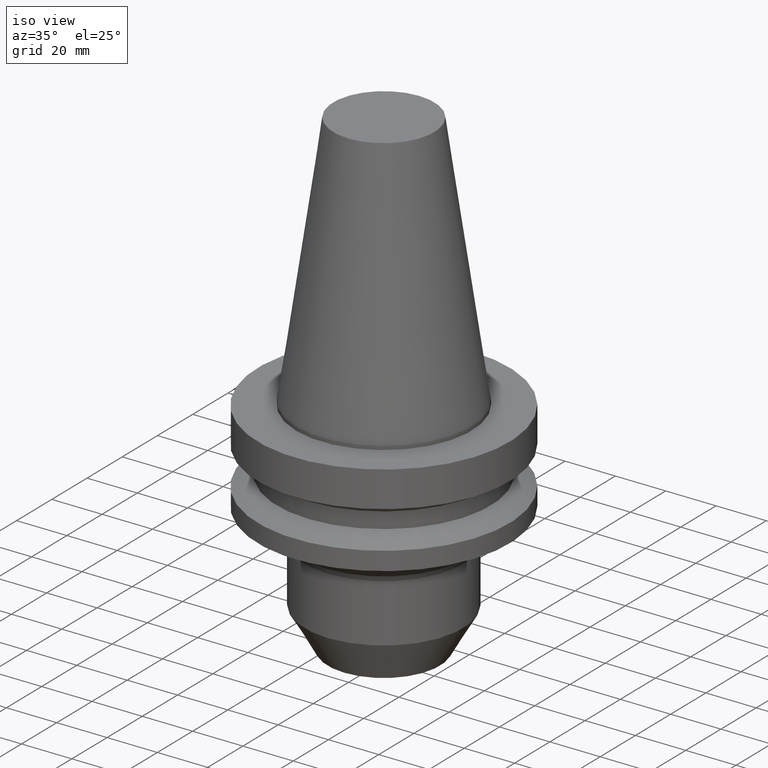
[diagram: clean part render]
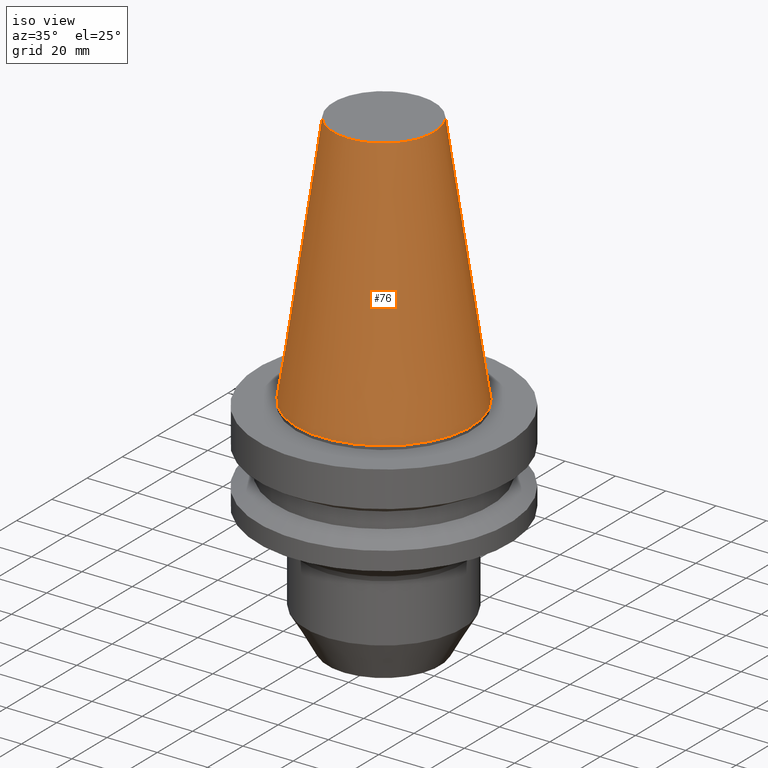
[diagram: tour spotlight — one face highlighted and labeled with its STEP entity id]
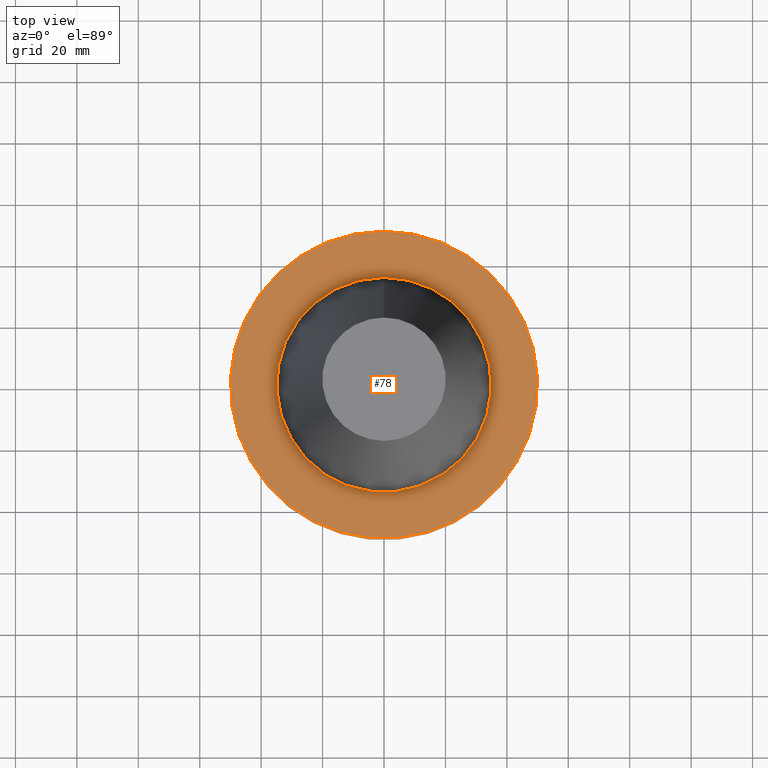
[diagram: tour spotlight — one face highlighted and labeled with its STEP entity id]
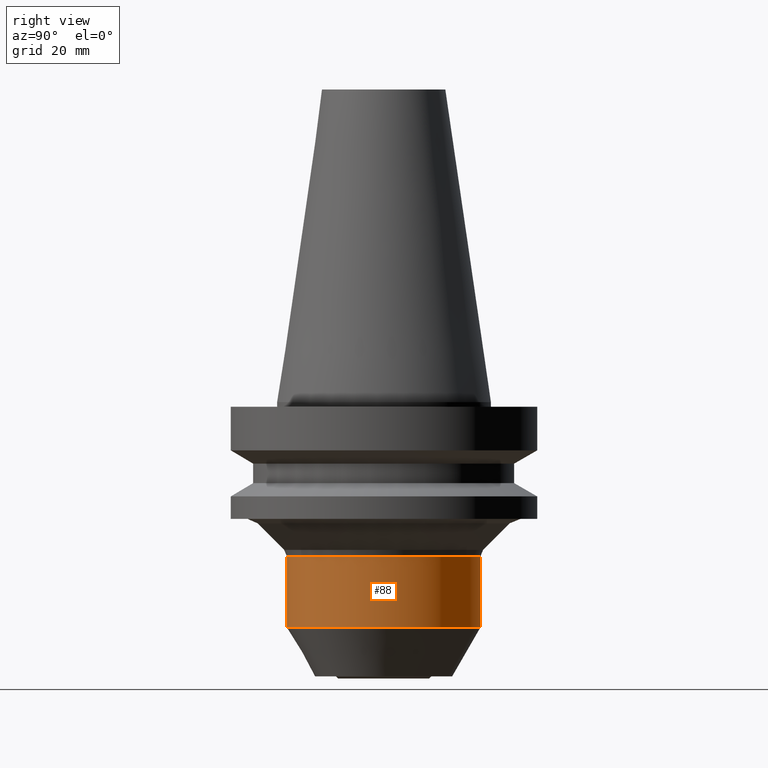
[diagram: tour spotlight — one face highlighted and labeled with its STEP entity id]
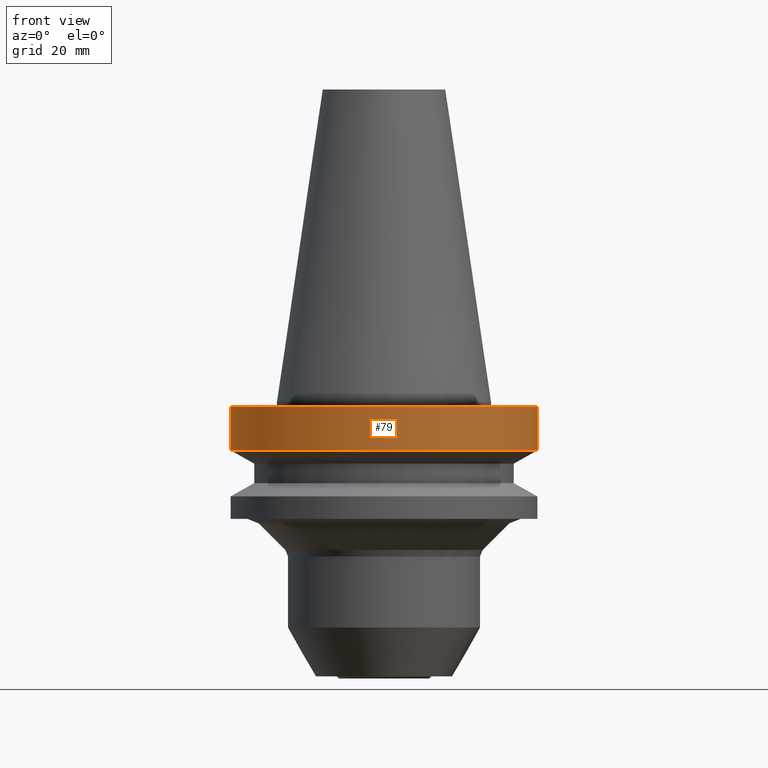
[diagram: tour spotlight — one face highlighted and labeled with its STEP entity id]
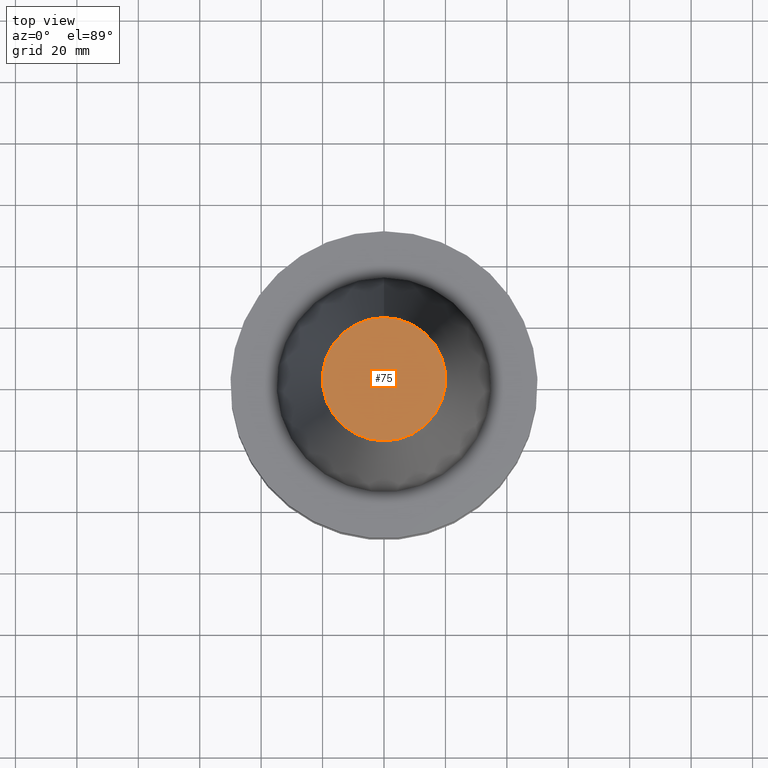
[diagram: tour spotlight — one face highlighted and labeled with its STEP entity id]
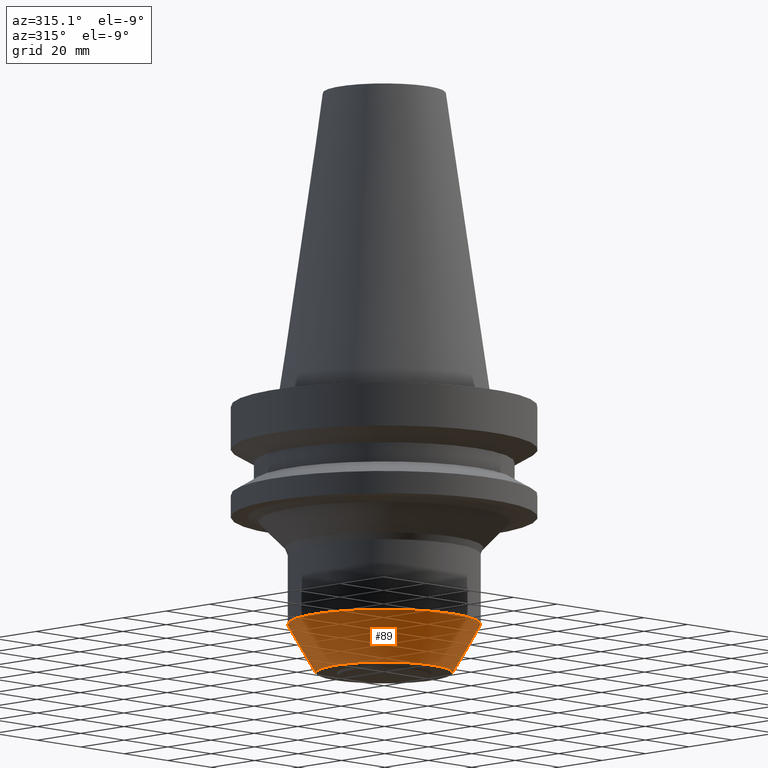
[diagram: tour spotlight — one face highlighted and labeled with its STEP entity id]
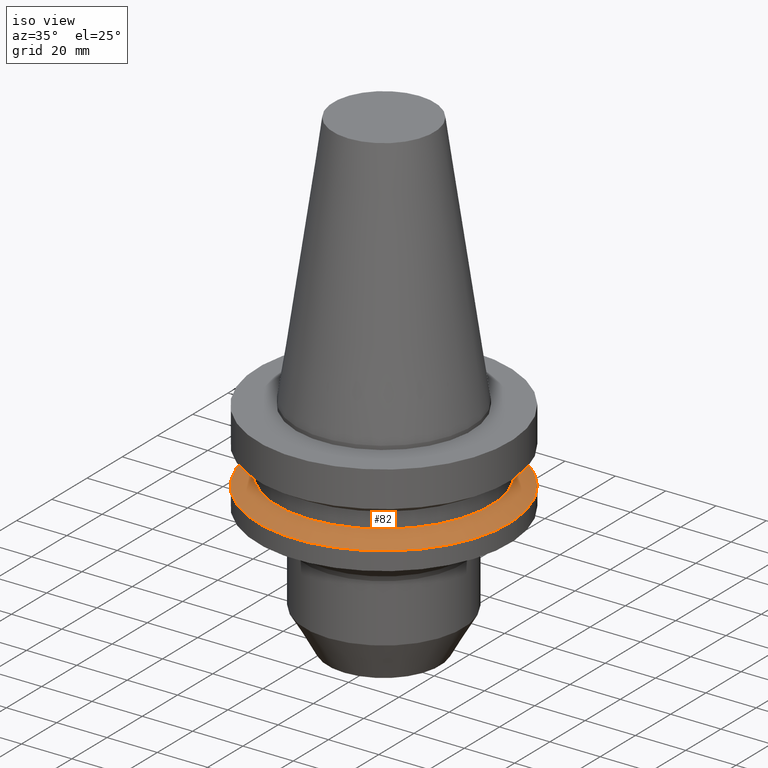
[diagram: tour spotlight — one face highlighted and labeled with its STEP entity id]
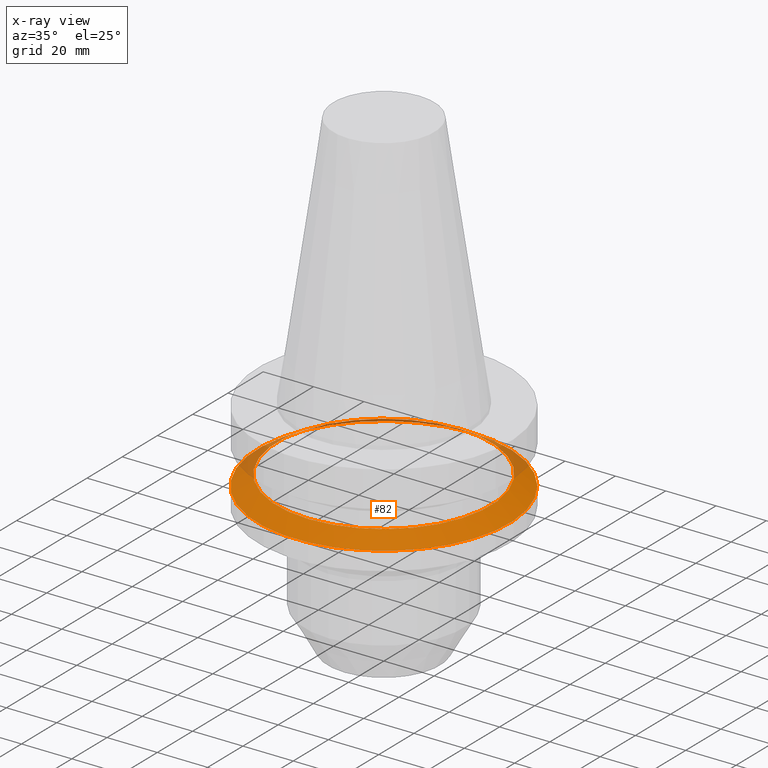
[diagram: x-ray of the same camera — body ghosted, this tour face saturated]
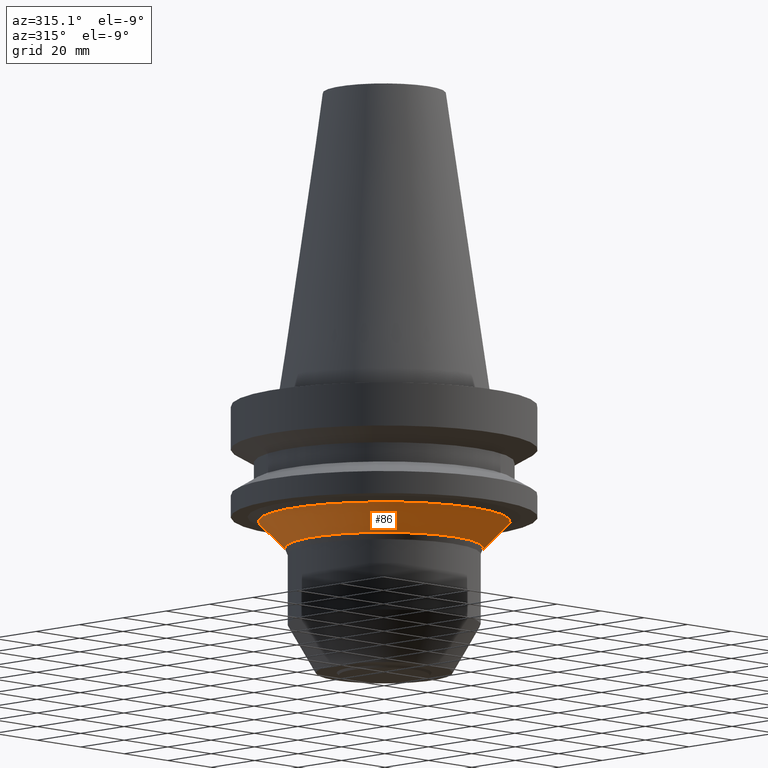
[diagram: tour spotlight — one face highlighted and labeled with its STEP entity id]
A machine part: a face-by-face anatomy tour. The part has 18 B-rep faces; the first image is the clean iso view, then the 8 largest visible faces are spotlighted one at a time (largest first), each with its STEP entity span.

Face 1 — iso view, entity #76. In plain terms, the highlighted conical surface has half-angle 8.297 deg.
Definition (entity closure, byte-faithful):
#76=ADVANCED_FACE('',(#96,#97),#98,.T.);
#96=FACE_BOUND('',#148,.T.);
#97=FACE_BOUND('',#149,.T.);
#98=CONICAL_SURFACE('',#150,27.5020833333334,0.144812498238939);
#148=EDGE_LOOP('',(#202));
#149=EDGE_LOOP('',(#203));
#150=AXIS2_PLACEMENT_3D('',#204,#205,#206);
#202=ORIENTED_EDGE('',*,*,#287,.F.);
#203=ORIENTED_EDGE('',*,*,#286,.T.);
#204=CARTESIAN_POINT('',(-3.11672610383001E-015,2.5138379520964E-015,50.9));
#205=DIRECTION('',(6.12323399573677E-017,6.1434083365827E-017,-1.0));
#206=DIRECTION('',(-8.58890540839761E-033,1.0,6.1434083365827E-017));
#286=EDGE_CURVE('',#303,#303,#304,.T.);
#287=EDGE_CURVE('',#305,#305,#306,.T.);
#303=VERTEX_POINT('',#337);
#304=CIRCLE('',#338,20.0791666666667);
#305=VERTEX_POINT('',#339);
#306=CIRCLE('',#340,34.925);
#337=CARTESIAN_POINT('',(-6.23345220766003E-015,20.0791666666667,101.8));
#338=AXIS2_PLACEMENT_3D('',#371,#372,#373);
#339=CARTESIAN_POINT('',(-4.30483861169436E-031,34.925,4.27707894602214E-015));
#340=AXIS2_PLACEMENT_3D('',#374,#375,#376);
#371=CARTESIAN_POINT('',(-6.23345220766003E-015,-6.13156891226943E-016,101.8));
#372=DIRECTION('',(6.12323399573677E-017,6.14340833658759E-017,-1.0));
#373=DIRECTION('',(-8.58890540839531E-033,1.0,6.14340833658759E-017));
#374=CARTESIAN_POINT('',(-6.95286322686748E-047,5.64083279541974E-015,6.9080278274362E-031));
#375=DIRECTION('',(6.12323399573677E-017,6.14340833658914E-017,-1.0));
#376=DIRECTION('',(-8.58890540840407E-033,1.0,6.14340833658914E-017));

Face 2 — top view, entity #78. In plain terms, the highlighted planar face has unit normal (-0, 0, 1).
Definition (entity closure, byte-faithful):
#78=ADVANCED_FACE('',(#102,#103),#104,.T.);
#102=FACE_OUTER_BOUND('',#154,.T.);
#103=FACE_BOUND('',#155,.T.);
#104=PLANE('',#156);
#154=EDGE_LOOP('',(#212));
#155=EDGE_LOOP('',(#213));
#156=AXIS2_PLACEMENT_3D('',#214,#215,#216);
#212=ORIENTED_EDGE('',*,*,#289,.F.);
#213=ORIENTED_EDGE('',*,*,#288,.T.);
#214=CARTESIAN_POINT('',(9.18485099360522E-017,42.4625,-1.50000000000002));
#215=DIRECTION('',(-6.12323399573677E-017,1.04115215518161E-015,1.0));
#216=DIRECTION('',(-5.89250299826576E-032,-1.0,1.04115215518161E-015));
#288=EDGE_CURVE('',#307,#307,#308,.T.);
#289=EDGE_CURVE('',#309,#309,#310,.T.);
#307=VERTEX_POINT('',#341);
#308=CIRCLE('',#342,34.925);
#309=VERTEX_POINT('',#343);
#310=CIRCLE('',#344,50.0);
#341=CARTESIAN_POINT('',(9.18485099360518E-017,34.925,-1.50000000000001));
#342=AXIS2_PLACEMENT_3D('',#377,#378,#379);
#343=CARTESIAN_POINT('',(9.18485099360527E-017,50.0,-1.50000000000002));
#344=AXIS2_PLACEMENT_3D('',#380,#381,#382);
#377=CARTESIAN_POINT('',(9.18485099360524E-017,5.73298392046856E-015,-1.50000000000001));
#378=DIRECTION('',(6.12323399573677E-017,6.14340833658914E-017,-1.0));
#379=DIRECTION('',(-8.58890540840407E-033,1.0,6.14340833658914E-017));
#380=CARTESIAN_POINT('',(9.18485099360532E-017,5.73298392046856E-015,-1.50000000000003));
#381=DIRECTION('',(6.12323399573677E-017,6.14340833658324E-017,-1.0));
#382=DIRECTION('',(-8.58890540840134E-033,1.0,6.14340833658324E-017));

Face 3 — right view, entity #88. In plain terms, the highlighted cylindrical surface (bore or boss wall) has radius 31.5 mm, axis along (-0, -0, 1).
Definition (entity closure, byte-faithful):
#88=ADVANCED_FACE('',(#132,#133),#134,.T.);
#132=FACE_BOUND('',#184,.T.);
#133=FACE_BOUND('',#185,.T.);
#134=CYLINDRICAL_SURFACE('',#186,31.5000000000001);
#184=EDGE_LOOP('',(#262));
#185=EDGE_LOOP('',(#263));
#186=AXIS2_PLACEMENT_3D('',#264,#265,#266);
#262=ORIENTED_EDGE('',*,*,#299,.F.);
#263=ORIENTED_EDGE('',*,*,#298,.T.);
#264=CARTESIAN_POINT('',(3.78439659673765E-015,9.43769791890524E-015,-61.8038866287405));
#265=DIRECTION('',(-6.12323399573677E-017,-6.14340833658364E-017,1.0));
#266=DIRECTION('',(-8.58890540839311E-033,1.0,6.14340833658364E-017));
#298=EDGE_CURVE('',#327,#327,#328,.T.);
#299=EDGE_CURVE('',#329,#329,#330,.T.);
#327=VERTEX_POINT('',#361);
#328=CIRCLE('',#362,31.4999999999995);
#329=VERTEX_POINT('',#363);
#330=CIRCLE('',#364,31.5000000000007);
#361=CARTESIAN_POINT('',(3.07647445490945E-015,31.4999999999995,-50.2426406871175));
#362=AXIS2_PLACEMENT_3D('',#407,#408,#409);
#363=CARTESIAN_POINT('',(4.49231873856584E-015,31.5000000000007,-73.3651325703635));
#364=AXIS2_PLACEMENT_3D('',#410,#411,#412);
#407=CARTESIAN_POINT('',(3.07647445490945E-015,8.72744337191412E-015,-50.2426406871175));
#408=DIRECTION('',(6.12323399573677E-017,6.14340833658375E-017,-1.0));
#409=DIRECTION('',(-8.58890540839328E-033,1.0,6.14340833658375E-017));
#410=CARTESIAN_POINT('',(4.49231873856584E-015,1.01479524658964E-014,-73.3651325703635));
#411=DIRECTION('',(6.12323399573677E-017,6.14340833658352E-017,-1.0));
#412=DIRECTION('',(-8.58890540839295E-033,1.0,6.14340833658352E-017));

Face 4 — front view, entity #79. In plain terms, the highlighted cylindrical surface (bore or boss wall) has radius 50 mm, axis along (-0, -0, 1).
Definition (entity closure, byte-faithful):
#79=ADVANCED_FACE('',(#105,#106),#107,.T.);
#105=FACE_BOUND('',#157,.T.);
#106=FACE_BOUND('',#158,.T.);
#107=CYLINDRICAL_SURFACE('',#159,50.0);
#157=EDGE_LOOP('',(#217));
#158=EDGE_LOOP('',(#218));
#159=AXIS2_PLACEMENT_3D('',#219,#220,#221);
#217=ORIENTED_EDGE('',*,*,#290,.F.);
#218=ORIENTED_EDGE('',*,*,#289,.T.);
#219=CARTESIAN_POINT('',(5.26598123633362E-016,6.16916591236632E-015,-8.59999999999999));
#220=DIRECTION('',(-6.12323399573677E-017,-6.14340833658324E-017,1.0));
#221=DIRECTION('',(-8.58890540840134E-033,1.0,6.14340833658324E-017));
#289=EDGE_CURVE('',#309,#309,#310,.T.);
#290=EDGE_CURVE('',#311,#311,#312,.T.);
#309=VERTEX_POINT('',#343);
#310=CIRCLE('',#344,50.0);
#311=VERTEX_POINT('',#345);
#312=CIRCLE('',#346,50.0);
#343=CARTESIAN_POINT('',(9.18485099360527E-017,50.0,-1.50000000000002));
#344=AXIS2_PLACEMENT_3D('',#380,#381,#382);
#345=CARTESIAN_POINT('',(9.61347737330669E-016,50.0,-15.7));
#346=AXIS2_PLACEMENT_3D('',#383,#384,#385);
#380=CARTESIAN_POINT('',(9.18485099360532E-017,5.73298392046856E-015,-1.50000000000003));
#381=DIRECTION('',(6.12323399573677E-017,6.14340833658324E-017,-1.0));
#382=DIRECTION('',(-8.58890540840134E-033,1.0,6.14340833658324E-017));
#383=CARTESIAN_POINT('',(9.6134773733067E-016,6.60534790426407E-015,-15.7));
#384=DIRECTION('',(6.12323399573677E-017,6.14340833658324E-017,-1.0));
#385=DIRECTION('',(-8.58890540840134E-033,1.0,6.14340833658324E-017));

Face 5 — top view, entity #75. In plain terms, the highlighted planar face has unit normal (-0, -0, 1).
Definition (entity closure, byte-faithful):
#75=ADVANCED_FACE('',(#94),#95,.T.);
#94=FACE_OUTER_BOUND('',#146,.T.);
#95=PLANE('',#147);
#146=EDGE_LOOP('',(#198));
#147=AXIS2_PLACEMENT_3D('',#199,#200,#201);
#198=ORIENTED_EDGE('',*,*,#286,.F.);
#199=CARTESIAN_POINT('',(-6.23345220766003E-015,10.0395833333334,101.8));
#200=DIRECTION('',(-6.12323399573677E-017,-1.22464679914735E-016,1.0));
#201=DIRECTION('',(1.23259516440783E-032,-1.0,-1.22464679914735E-016));
#286=EDGE_CURVE('',#303,#303,#304,.T.);
#303=VERTEX_POINT('',#337);
#304=CIRCLE('',#338,20.0791666666667);
#337=CARTESIAN_POINT('',(-6.23345220766003E-015,20.0791666666667,101.8));
#338=AXIS2_PLACEMENT_3D('',#371,#372,#373);
#371=CARTESIAN_POINT('',(-6.23345220766003E-015,-6.13156891226943E-016,101.8));
#372=DIRECTION('',(6.12323399573677E-017,6.14340833658759E-017,-1.0));
#373=DIRECTION('',(-8.58890540839531E-033,1.0,6.14340833658759E-017));

Face 6 — auxiliary view, entity #89. In plain terms, the highlighted conical surface has half-angle 30 deg.
Definition (entity closure, byte-faithful):
#89=ADVANCED_FACE('',(#135,#136),#137,.T.);
#135=FACE_BOUND('',#187,.T.);
#136=FACE_BOUND('',#188,.T.);
#137=CONICAL_SURFACE('',#189,26.9000000000004,0.523598775598279);
#187=EDGE_LOOP('',(#267));
#188=EDGE_LOOP('',(#268));
#189=AXIS2_PLACEMENT_3D('',#269,#270,#271);
#267=ORIENTED_EDGE('',*,*,#300,.F.);
#268=ORIENTED_EDGE('',*,*,#299,.T.);
#269=CARTESIAN_POINT('',(4.98018334837936E-015,1.06374244529446E-014,-81.3325662851813));
#270=DIRECTION('',(-6.12323399573676E-017,-6.14340833659161E-017,1.0));
#271=DIRECTION('',(-8.58890540839892E-033,1.0,6.14340833659161E-017));
#299=EDGE_CURVE('',#329,#329,#330,.T.);
#300=EDGE_CURVE('',#331,#331,#332,.T.);
#329=VERTEX_POINT('',#363);
#330=CIRCLE('',#364,31.5000000000007);
#331=VERTEX_POINT('',#365);
#332=CIRCLE('',#366,22.3000000000001);
#363=CARTESIAN_POINT('',(4.49231873856584E-015,31.5000000000007,-73.3651325703635));
#364=AXIS2_PLACEMENT_3D('',#410,#411,#412);
#365=CARTESIAN_POINT('',(5.46804795819287E-015,22.3000000000001,-89.299999999999));
#366=AXIS2_PLACEMENT_3D('',#413,#414,#415);
#410=CARTESIAN_POINT('',(4.49231873856584E-015,1.01479524658964E-014,-73.3651325703635));
#411=DIRECTION('',(6.12323399573677E-017,6.14340833658352E-017,-1.0));
#412=DIRECTION('',(-8.58890540839295E-033,1.0,6.14340833658352E-017));
#413=CARTESIAN_POINT('',(5.46804795819287E-015,1.11268964399929E-014,-89.299999999999));
#414=DIRECTION('',(6.12323399573676E-017,6.14340833658856E-017,-1.0));
#415=DIRECTION('',(-8.58890540839933E-033,1.0,6.14340833658856E-017));

Face 7 — iso view, entity #82. An x-ray twin of the same camera follows (body ghosted, this face saturated) — the face is partly hidden behind the body. In plain terms, the highlighted conical surface has half-angle 60 deg.
Definition (entity closure, byte-faithful):
#82=ADVANCED_FACE('',(#114,#115),#116,.T.);
#114=FACE_BOUND('',#166,.T.);
#115=FACE_BOUND('',#167,.T.);
#116=CONICAL_SURFACE('',#168,46.25,1.0471975511966);
#166=EDGE_LOOP('',(#232));
#167=EDGE_LOOP('',(#233));
#168=AXIS2_PLACEMENT_3D('',#234,#235,#236);
#232=ORIENTED_EDGE('',*,*,#293,.F.);
#233=ORIENTED_EDGE('',*,*,#292,.T.);
#234=CARTESIAN_POINT('',(1.74726093185057E-015,7.39385046261962E-015,-28.5349364905389));
#235=DIRECTION('',(6.12323399573677E-017,6.14340833658255E-017,-1.0));
#236=DIRECTION('',(-8.58890540839591E-033,1.0,6.14340833658255E-017));
#292=EDGE_CURVE('',#315,#315,#316,.T.);
#293=EDGE_CURVE('',#317,#317,#318,.T.);
#315=VERTEX_POINT('',#349);
#316=CIRCLE('',#350,42.5);
#317=VERTEX_POINT('',#351);
#318=CIRCLE('',#352,50.0);
#349=CARTESIAN_POINT('',(1.61468902700996E-015,42.5,-26.3698729810777));
#350=AXIS2_PLACEMENT_3D('',#389,#390,#391);
#351=CARTESIAN_POINT('',(1.87983283669118E-015,50.0000000000001,-30.7));
#352=AXIS2_PLACEMENT_3D('',#392,#393,#394);
#389=CARTESIAN_POINT('',(1.61468902700996E-015,7.26084177048696E-015,-26.3698729810777));
#390=DIRECTION('',(6.12323399573677E-017,6.14340833658172E-017,-1.0));
#391=DIRECTION('',(-8.58890540838952E-033,1.0,6.14340833658172E-017));
#392=CARTESIAN_POINT('',(1.87983283669118E-015,7.52685915475228E-015,-30.7));
#393=DIRECTION('',(6.12323399573677E-017,6.14340833658324E-017,-1.0));
#394=DIRECTION('',(-8.58890540840134E-033,1.0,6.14340833658324E-017));

Face 8 — auxiliary view, entity #86. In plain terms, the highlighted conical surface has half-angle 45 deg.
Definition (entity closure, byte-faithful):
#86=ADVANCED_FACE('',(#126,#127),#128,.T.);
#126=FACE_BOUND('',#178,.T.);
#127=FACE_BOUND('',#179,.T.);
#128=CONICAL_SURFACE('',#180,36.7071067811855,0.785398163397443);
#178=EDGE_LOOP('',(#252));
#179=EDGE_LOOP('',(#253));
#180=AXIS2_PLACEMENT_3D('',#254,#255,#256);
#252=ORIENTED_EDGE('',*,*,#297,.F.);
#253=ORIENTED_EDGE('',*,*,#296,.T.);
#254=CARTESIAN_POINT('',(2.681541325291E-015,8.33120904825736E-015,-43.7928932188121));
#255=DIRECTION('',(-6.12323399573677E-017,-6.14340833659059E-017,1.0));
#256=DIRECTION('',(-8.58890540840594E-033,1.0,6.14340833659059E-017));
#296=EDGE_CURVE('',#323,#323,#324,.T.);
#297=EDGE_CURVE('',#325,#325,#326,.T.);
#323=VERTEX_POINT('',#357);
#324=CIRCLE('',#358,41.0355339059312);
#325=VERTEX_POINT('',#359);
#326=CIRCLE('',#360,32.3786796564399);
#357=CARTESIAN_POINT('',(2.41650160410788E-015,41.0355339059312,-39.4644660940664));
#358=AXIS2_PLACEMENT_3D('',#401,#402,#403);
#359=CARTESIAN_POINT('',(2.94658104647412E-015,32.3786796564399,-48.1213203435577));
#360=AXIS2_PLACEMENT_3D('',#404,#405,#406);
#401=CARTESIAN_POINT('',(2.41650160410788E-015,8.0652960954326E-015,-39.4644660940664));
#402=DIRECTION('',(6.12323399573677E-017,6.14340833659352E-017,-1.0));
#403=DIRECTION('',(-8.58890540840719E-033,1.0,6.14340833659352E-017));
#404=CARTESIAN_POINT('',(2.94658104647412E-015,8.59712200108213E-015,-48.1213203435577));
#405=DIRECTION('',(6.12323399573677E-017,6.14340833658688E-017,-1.0));
#406=DIRECTION('',(-8.58890540839328E-033,1.0,6.14340833658688E-017));